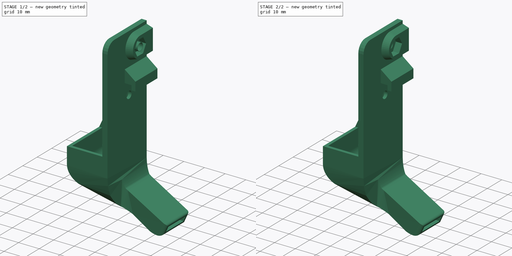
[diagram: build sequence overview — one tinted view per stage of 2, left to right]
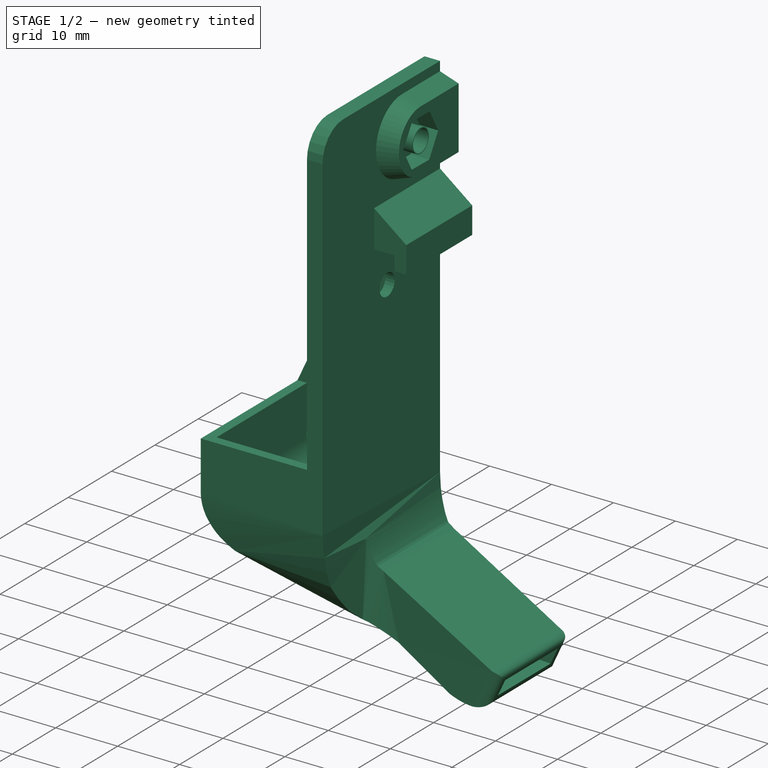
[diagram: stage 1 of 2 — iso view after this stage's code; geometry added in this stage tinted green]
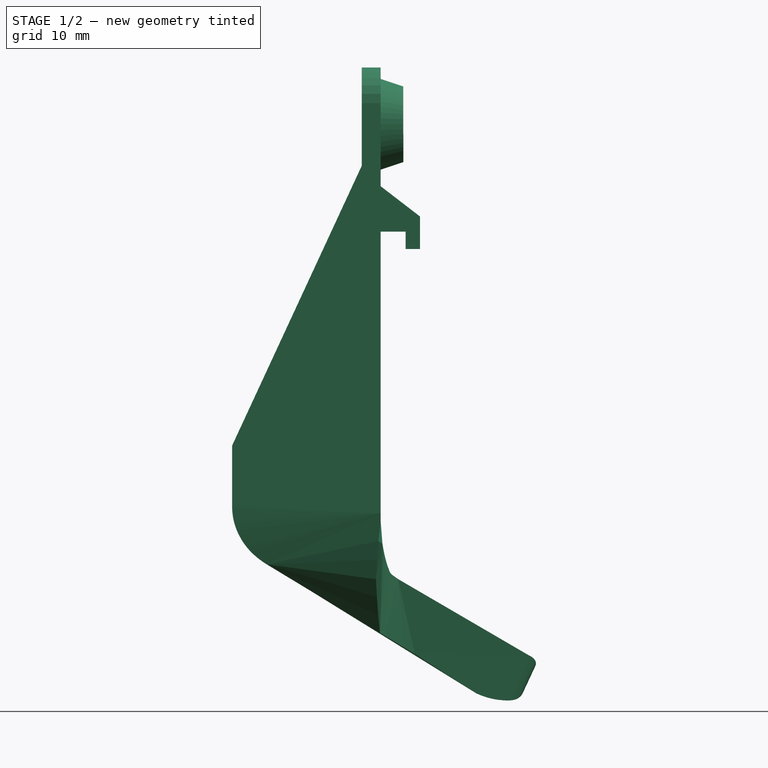
[diagram: stage 1 of 2 — front view after this stage's code; geometry added in this stage tinted green]
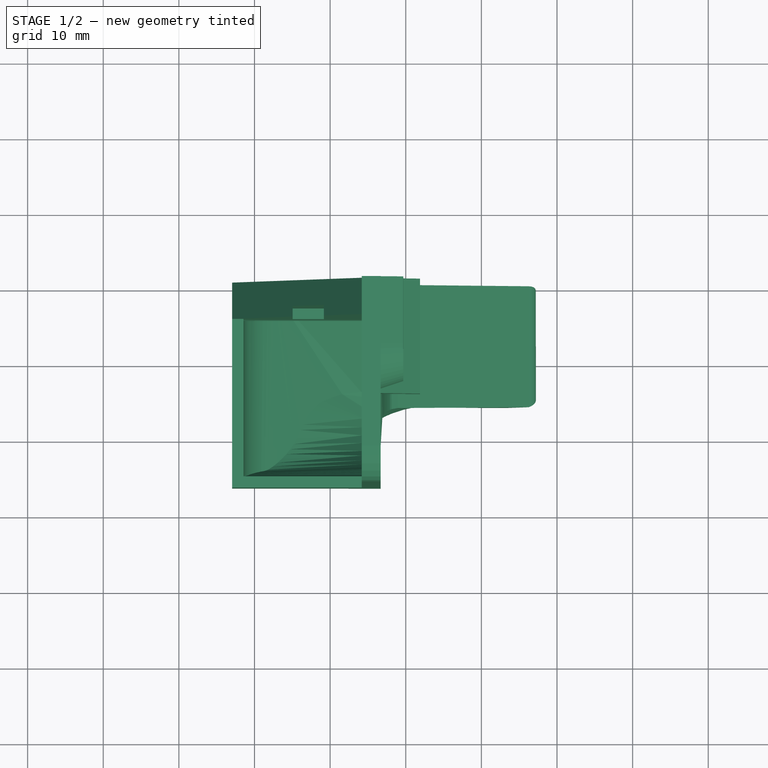
[diagram: stage 1 of 2 — top view after this stage's code; geometry added in this stage tinted green]
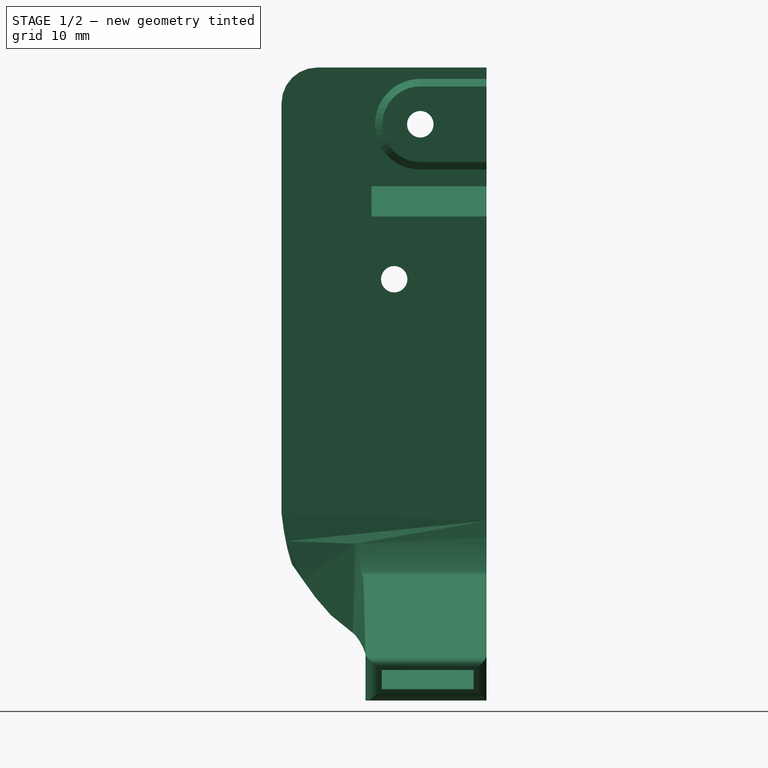
[diagram: stage 1 of 2 — right view after this stage's code; geometry added in this stage tinted green]
FCSTD DOCUMENT  (FreeCAD 0.21R33771 (Git))
Label: BlowerVent
License: All rights reserved
LicenseURL: http://en.wikipedia.org/wiki/All_rights_reserved
objects: Sketcher::SketchObject×2, PartDesign::Pocket×2, Part::Feature×1, Part::Refine×1, PartDesign::FeatureBase×1, PartDesign::Body×1
note: 10 computed .brp shape members not serialized (recipe doc carries the construction recipe); baked Part::Feature solids carry a one-line shape summary decoded from their .brp

FEATURE [Part::Feature] Duct_Left_Stock001_solid  label="Duct_Left_Stock001 (Solid)"
  shape: bbox 40.17 x 27.1 x 83.7 mm, 1266 faces (baked)
FEATURE [Part::Refine] Duct_Left_Stock001_solid001  label="Duct_Left_Stock001 (Solid)001"
  Source = -> Duct_Left_Stock001_solid
FEATURE [PartDesign::FeatureBase] BaseFeature
  BaseFeature = -> Duct_Left_Stock001_solid001
FEATURE [Sketcher::SketchObject] Sketch
  AttachmentOffset = pos=(0,0,0.2) rot=(0,0,1;0rad)
  FullyConstrained = false
  MapMode = 5
  Placement = pos=(-30.1138,0.000521066,-0.00223432) rot=(0.577343,0.577333,0.577375;2.09434rad)
  sketch-geometry (15):
    g0: Circle CenterX=1.75983 CenterY=83.7622 CenterZ=0 NormalX=0 NormalY=0 NormalZ=1 AngleXU=0 Radius=1.74072
    g1: Circle CenterX=1.75983 CenterY=83.7622 CenterZ=0 NormalX=0 NormalY=0 NormalZ=1 AngleXU=0 Radius=1.87878
    g2: LineSegment StartX=-1.75057 StartY=87.2476 StartZ=0 EndX=-1.75057 EndY=80.2476 EndZ=0
    g3: LineSegment StartX=-1.75057 StartY=80.2476 StartZ=0 EndX=5.24943 EndY=80.2476 EndZ=0
    g4: LineSegment StartX=5.24943 StartY=80.2476 StartZ=0 EndX=5.24943 EndY=87.2476 EndZ=0
    g5: LineSegment StartX=5.24943 StartY=87.2476 StartZ=0 EndX=-1.75057 EndY=87.2476 EndZ=0
    g6: LineSegment StartX=5.24943 StartY=87.2476 StartZ=0 EndX=-1.75057 EndY=80.2476 EndZ=0
    g7: LineSegment StartX=-1.75057 StartY=87.2476 StartZ=0 EndX=5.24943 EndY=80.2476 EndZ=0
    g8: LineSegment StartX=5.7984 StartY=83.7151 StartZ=0 EndX=3.81995 EndY=87.2362 EndZ=0
    g9: LineSegment StartX=3.81995 StartY=87.2362 StartZ=0 EndX=-0.218616 EndY=87.2833 EndZ=0
    g10: LineSegment StartX=-0.218616 StartY=87.2833 StartZ=0 EndX=-2.27873 EndY=83.8094 EndZ=0
    g11: LineSegment StartX=-2.27873 StartY=83.8094 StartZ=0 EndX=-0.300286 EndY=80.2883 EndZ=0
    g12: LineSegment StartX=-0.300286 StartY=80.2883 StartZ=0 EndX=3.73828 EndY=80.2412 EndZ=0
    g13: LineSegment StartX=3.73828 StartY=80.2412 StartZ=0 EndX=5.7984 EndY=83.7151 EndZ=0
    g14: Circle CenterX=1.75983 CenterY=83.7622 CenterZ=0 NormalX=0 NormalY=0 NormalZ=1 AngleXU=0 Radius=4.03884
  constraints (29):
    c: Coincident(g1,g0)
    c: Coincident(g2,g3)
    c: Coincident(g3,g4)
    c: Coincident(g4,g5)
    c: Coincident(g5,g2)
    c: Vertical(g2)
    c: Vertical(g4)
    c: Horizontal(g3)
    c: Horizontal(g5)
    c: Distance(g2,g4) = 7
    c: Distance(g3,g5) = 7
    c: Coincident(g6,g4)
    c: Coincident(g6,g2)
    c: Coincident(g7,g2)
    c: Coincident(g7,g3)
    c: Coincident(g8,g9)
    c: Coincident(g9,g10)
    c: Coincident(g10,g11)
    c: Coincident(g11,g12)
    c: Coincident(g12,g13)
    c: Coincident(g13,g8)
    c: Equal(g8, g9-g13) x5
    c: PointOnObject(g8,g14)
    c: PointOnObject(g9,g14)
    c: PointOnObject(g10,g14)
    c: PointOnObject(g11,g14)
    c: PointOnObject(g12,g14)
    c: PointOnObject(g13,g14)
    c: Coincident(g14,g0)
FEATURE [PartDesign::Pocket] Pocket
  BaseFeature = -> BaseFeature
  Direction = (-1,1.73032e-05,-7.41959e-05)
  Length = 3.2
  Length2 = 5
  Profile = -> Sketch
  ReferenceAxis = -> Sketch [N_Axis]
  Type = 0
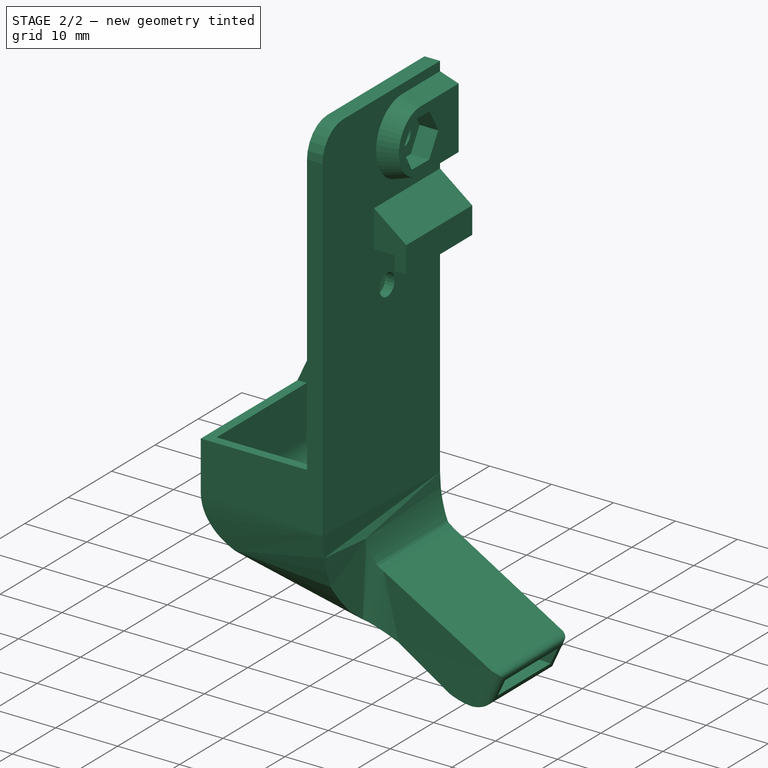
[diagram: stage 2 of 2 — iso view after this stage's code; geometry added in this stage tinted green]
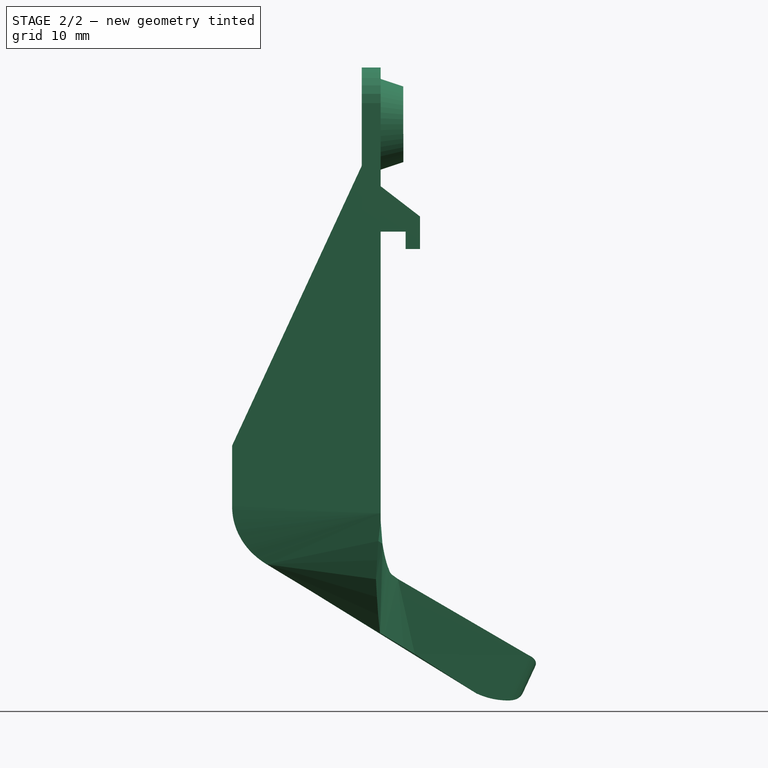
[diagram: stage 2 of 2 — front view after this stage's code; geometry added in this stage tinted green]
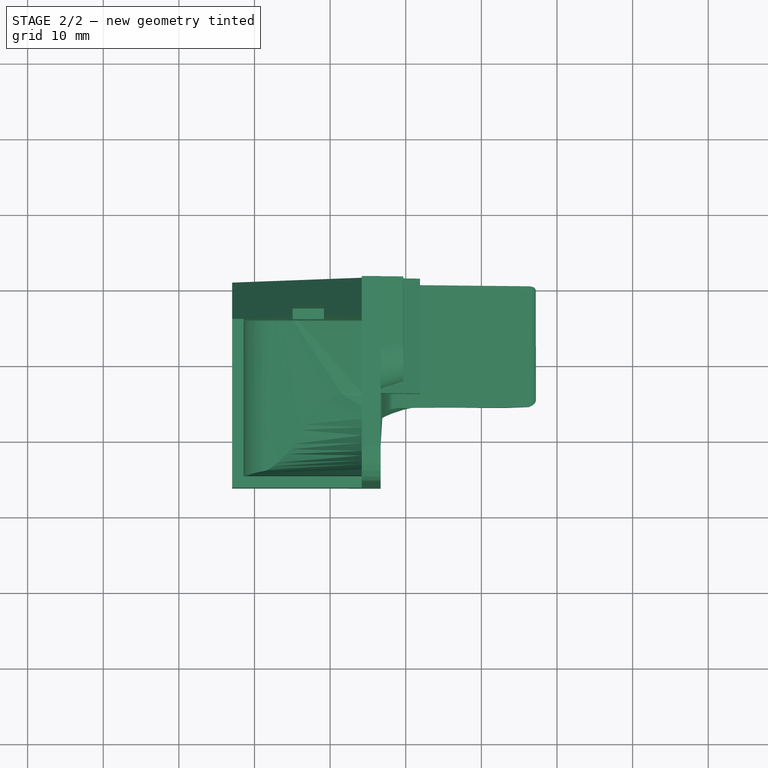
[diagram: stage 2 of 2 — top view after this stage's code; geometry added in this stage tinted green]
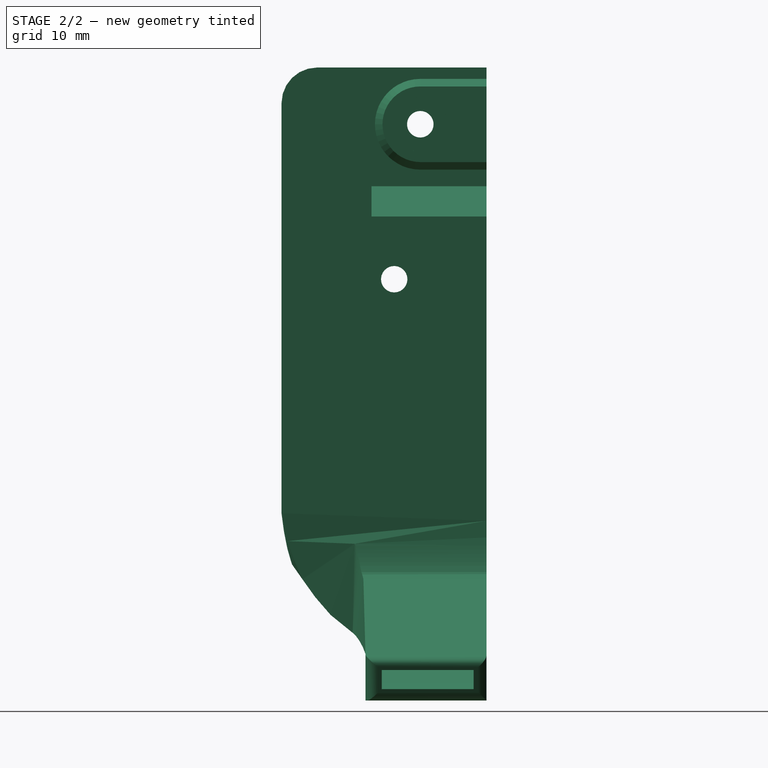
[diagram: stage 2 of 2 — right view after this stage's code; geometry added in this stage tinted green]
FEATURE [Sketcher::SketchObject] Sketch001
  AttachmentOffset = pos=(0,0,0.2) rot=(0,0,1;0rad)
  FullyConstrained = false
  MapMode = 5
  Placement = pos=(-30.1138,0.00509234,-0.0022319) rot=(0.577401,0.577303,0.577346;2.09425rad)
  sketch-geometry (1):
    g0: Circle CenterX=1.75772 CenterY=83.7518 CenterZ=0 NormalX=0 NormalY=0 NormalZ=1 AngleXU=0 Radius=2.00411
FEATURE [PartDesign::Pocket] Pocket001
  BaseFeature = -> Pocket
  Direction = (-1,0.000169103,-7.41155e-05)
  Length = 3
  Length2 = 5
  Profile = -> Sketch001
  ReferenceAxis = -> Sketch001 [N_Axis]
  Type = 0
FEATURE [PartDesign::Body] Body
  BaseFeature = -> Duct_Left_Stock001_solid001
  Group = -> [BaseFeature,Sketch,Pocket,Sketch001,Pocket001]
  Origin = -> Origin
  Tip = -> Pocket001
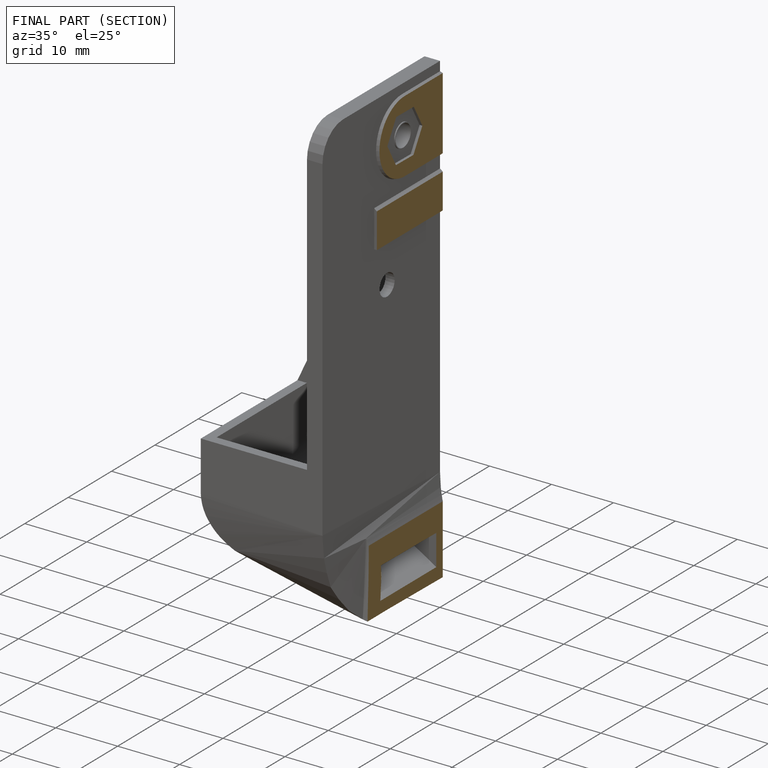
[diagram: finished part — half-section view (interior)]
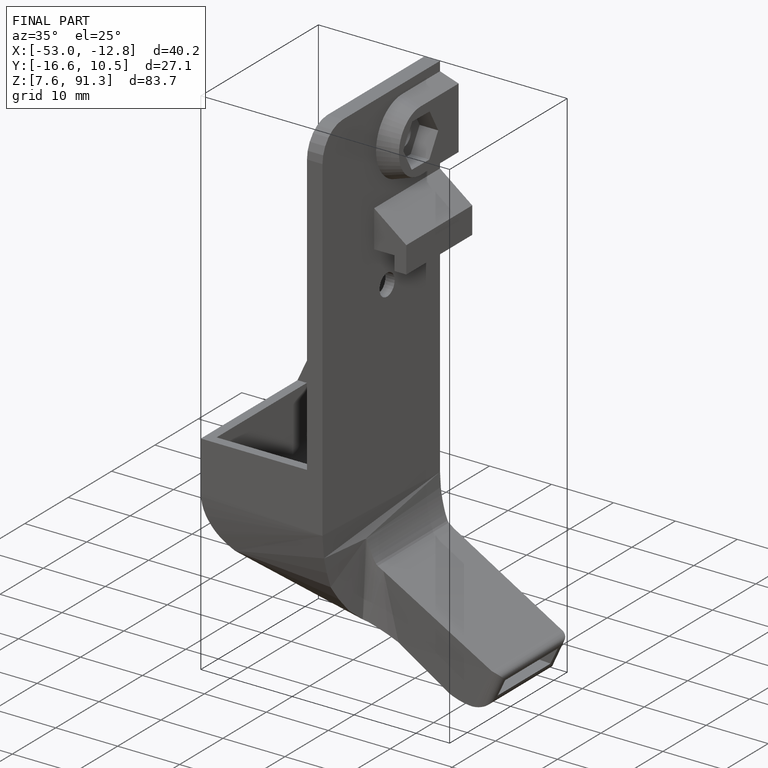
[diagram: finished part — iso view with bounding-box wireframe]
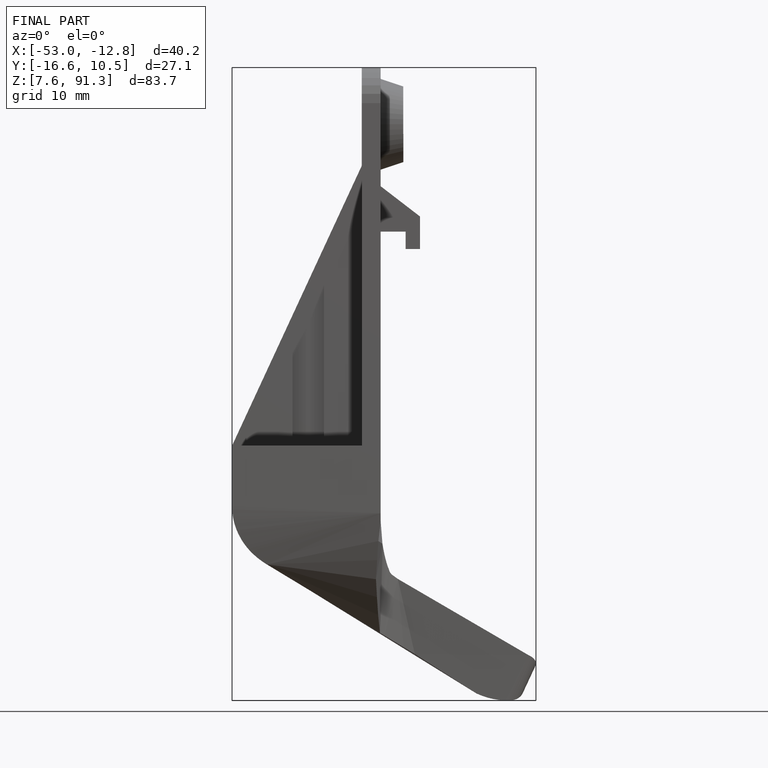
[diagram: finished part — front view with bounding-box wireframe]
